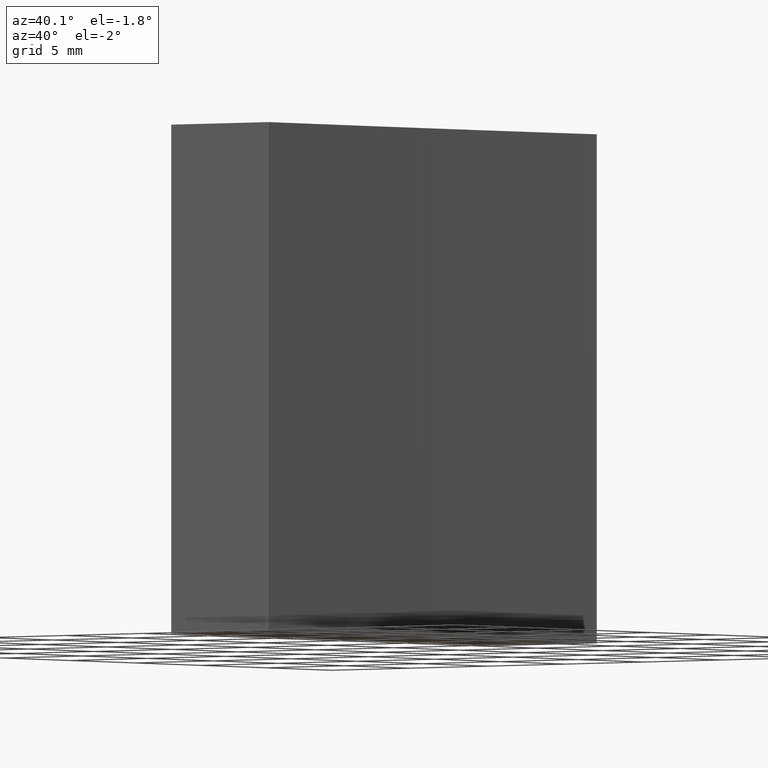
[diagram: clean part render]
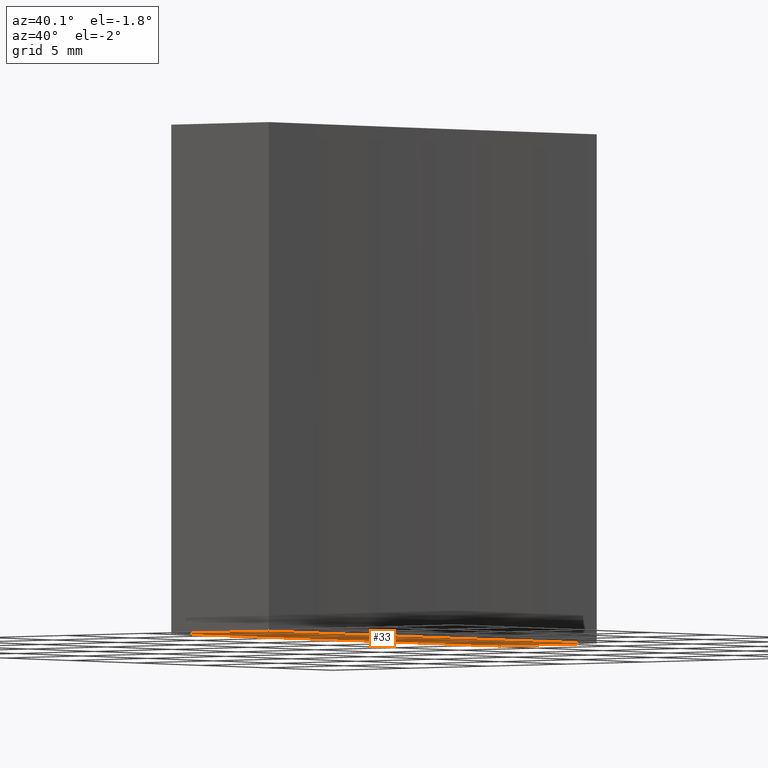
[diagram: same view with one face highlighted and labeled with its STEP entity id]
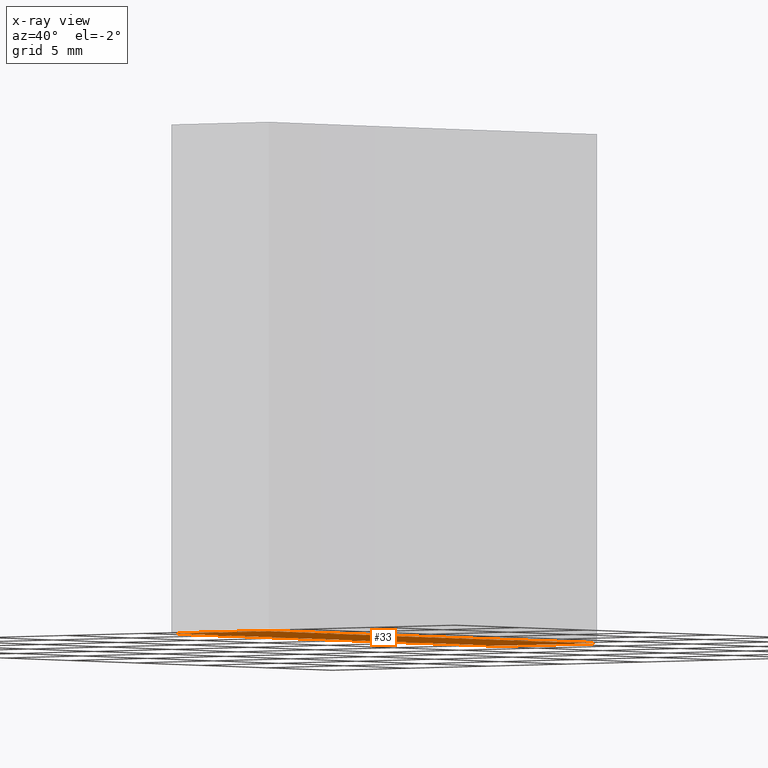
[diagram: x-ray of the same camera — body ghosted, the highlighted face saturated]
A machine part, auxiliary view. The second image highlights one B-rep face of the part: STEP entity #33.
The next image is the same camera in x-ray: the body ghosted, the highlighted face saturated — about 0% of this face is hidden behind the body in this view.
In plain terms, the highlighted planar face has unit normal (0, 0, 1).
Its self-contained STEP definition (entity closure, byte-faithful):
#3 = DIRECTION ( 'NONE',  ( -0.0000000000000000000, -0.0000000000000000000, -1.000000000000000000 ) ) ;
#5 = CARTESIAN_POINT ( 'NONE',  ( 290.9676654242437100, 54.35792926776714800, 0.0000000000000000000 ) ) ;
#17 = CARTESIAN_POINT ( 'NONE',  ( 284.7071356312820900, 54.35792926776707600, 0.0000000000000000000 ) ) ;
#22 = CARTESIAN_POINT ( 'NONE',  ( 290.9676654242437600, 54.35792926776709800, 0.0000000000000000000 ) ) ;
#26 = VERTEX_POINT ( 'NONE', #17 ) ;
#31 = LINE ( 'NONE', #22, #219 ) ;
#33 = ADVANCED_FACE ( 'NONE', ( #120 ), #129, .F. ) ;
#34 = EDGE_CURVE ( 'NONE', #188, #150, #200, .T. ) ;
#41 = CARTESIAN_POINT ( 'NONE',  ( 284.7071356312820900, 66.85792926776707600, 0.0000000000000000000 ) ) ;
#45 = DIRECTION ( 'NONE',  ( -0.0000000000000000000, -0.0000000000000000000, -1.000000000000000000 ) ) ;
#46 = DIRECTION ( 'NONE',  ( 1.000000000000000000, 3.325067110953557600E-015, -0.0000000000000000000 ) ) ;
#55 = CARTESIAN_POINT ( 'NONE',  ( 590.7071356312887900, 66.85792926776709100, 0.0000000000000000000 ) ) ;
#61 = CARTESIAN_POINT ( 'NONE',  ( 284.7071356312820900, 79.35792926776707600, 0.0000000000000000000 ) ) ;
#71 = EDGE_CURVE ( 'NONE', #109, #26, #108, .T. ) ;
#79 = CARTESIAN_POINT ( 'NONE',  ( 290.7071356312886800, 66.85792926776709100, 0.0000000000000000000 ) ) ;
#82 = ORIENTED_EDGE ( 'NONE', *, *, #199, .F. ) ;
#89 = DIRECTION ( 'NONE',  ( -0.0000000000000000000, -1.000000000000000000, -0.0000000000000000000 ) ) ;
#95 = VERTEX_POINT ( 'NONE', #136 ) ;
#97 = DIRECTION ( 'NONE',  ( 1.000000000000000000, 0.0000000000000000000, 0.0000000000000000000 ) ) ;
#99 = EDGE_LOOP ( 'NONE', ( #105, #205, #82, #217, #198 ) ) ;
#105 = ORIENTED_EDGE ( 'NONE', *, *, #201, .F. ) ;
#108 = LINE ( 'NONE', #41, #161 ) ;
#109 = VERTEX_POINT ( 'NONE', #116 ) ;
#116 = CARTESIAN_POINT ( 'NONE',  ( 284.7071356312820900, 79.35792926776707600, 0.0000000000000000000 ) ) ;
#120 = FACE_OUTER_BOUND ( 'NONE', #99, .T. ) ;
#121 = AXIS2_PLACEMENT_3D ( 'NONE', #55, #3, #208 ) ;
#128 = VECTOR ( 'NONE', #226, 1000.000000000000000 ) ;
#129 = PLANE ( 'NONE',  #162 ) ;
#134 = LINE ( 'NONE', #61, #128 ) ;
#136 = CARTESIAN_POINT ( 'NONE',  ( 290.9676654242437600, 79.35792926776707600, 0.0000000000000000000 ) ) ;
#137 = CARTESIAN_POINT ( 'NONE',  ( 590.7071356312887900, 66.85792926776709100, 0.0000000000000000000 ) ) ;
#140 = AXIS2_PLACEMENT_3D ( 'NONE', #137, #45, #97 ) ;
#149 = CARTESIAN_POINT ( 'NONE',  ( 590.7071356312887900, 66.85792926776709100, 0.0000000000000000000 ) ) ;
#150 = VERTEX_POINT ( 'NONE', #79 ) ;
#161 = VECTOR ( 'NONE', #89, 1000.000000000000000 ) ;
#162 = AXIS2_PLACEMENT_3D ( 'NONE', #149, #170, #186 ) ;
#170 = DIRECTION ( 'NONE',  ( 0.0000000000000000000, 0.0000000000000000000, 1.000000000000000000 ) ) ;
#185 = EDGE_CURVE ( 'NONE', #150, #95, #227, .T. ) ;
#186 = DIRECTION ( 'NONE',  ( 1.000000000000000000, 0.0000000000000000000, -0.0000000000000000000 ) ) ;
#188 = VERTEX_POINT ( 'NONE', #5 ) ;
#198 = ORIENTED_EDGE ( 'NONE', *, *, #34, .F. ) ;
#199 = EDGE_CURVE ( 'NONE', #95, #109, #134, .T. ) ;
#200 = CIRCLE ( 'NONE', #121, 300.0000000000000600 ) ;
#201 = EDGE_CURVE ( 'NONE', #26, #188, #31, .T. ) ;
#205 = ORIENTED_EDGE ( 'NONE', *, *, #71, .F. ) ;
#208 = DIRECTION ( 'NONE',  ( 1.000000000000000000, 0.0000000000000000000, 0.0000000000000000000 ) ) ;
#217 = ORIENTED_EDGE ( 'NONE', *, *, #185, .F. ) ;
#219 = VECTOR ( 'NONE', #46, 1000.000000000000000 ) ;
#226 = DIRECTION ( 'NONE',  ( -1.000000000000000000, -0.0000000000000000000, -0.0000000000000000000 ) ) ;
#227 = CIRCLE ( 'NONE', #140, 300.0000000000000600 ) ;